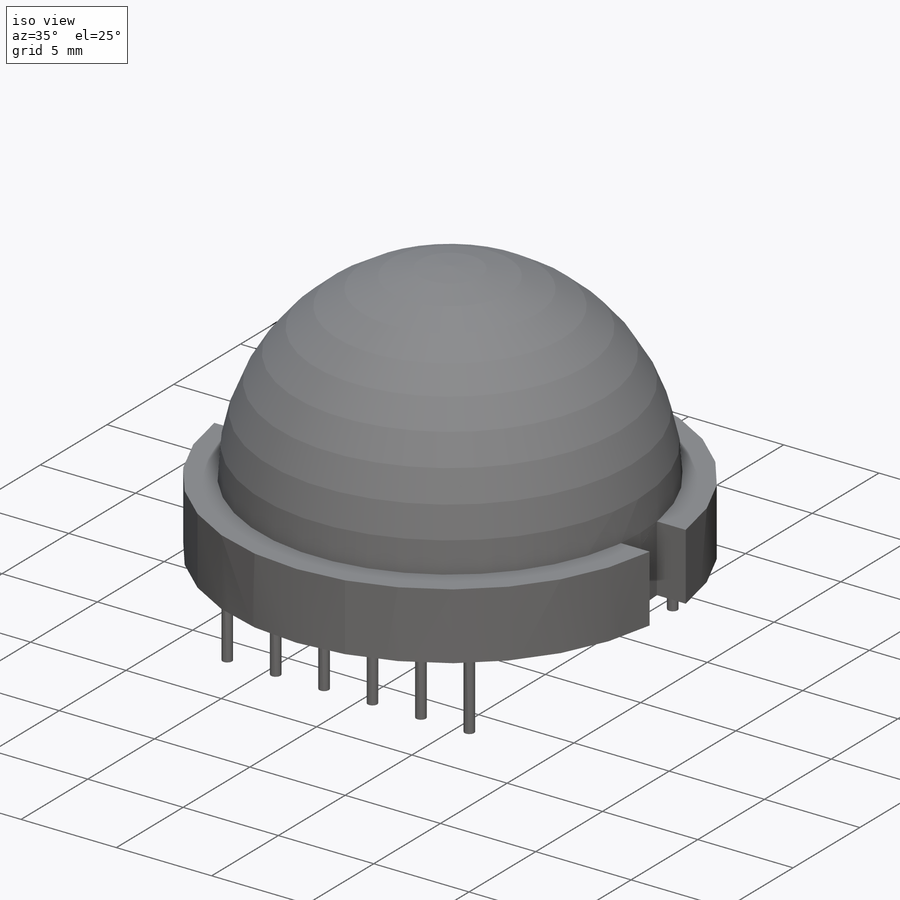
[diagram: iso view]
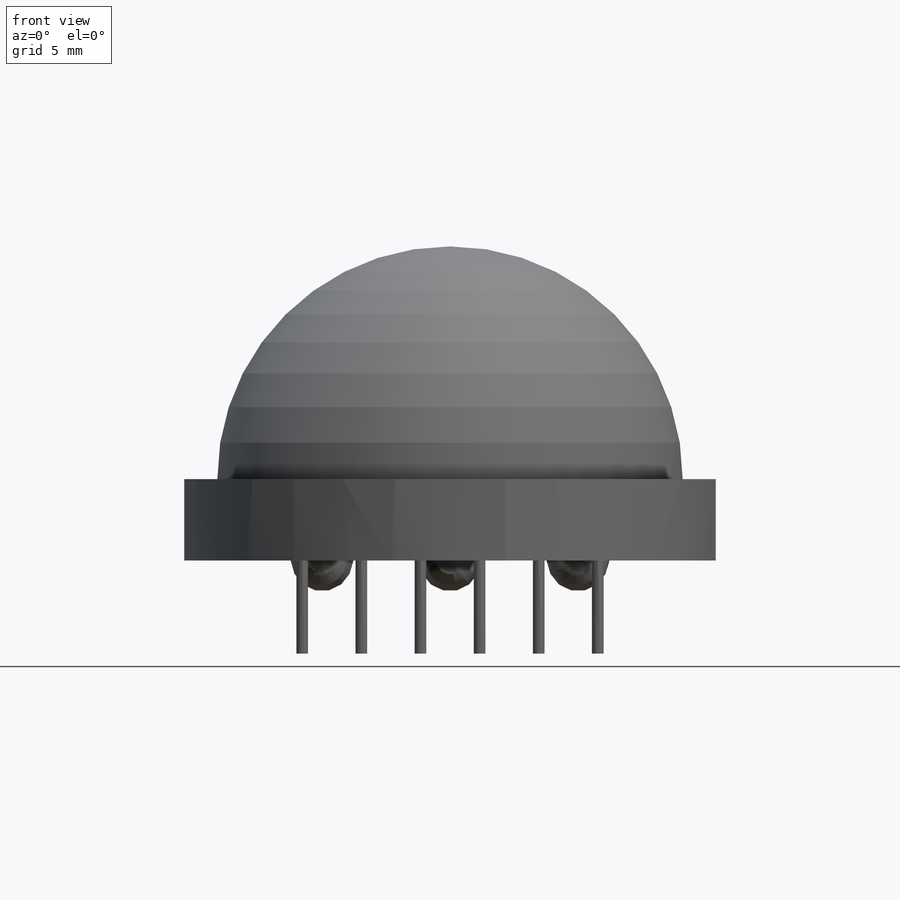
[diagram: front view]
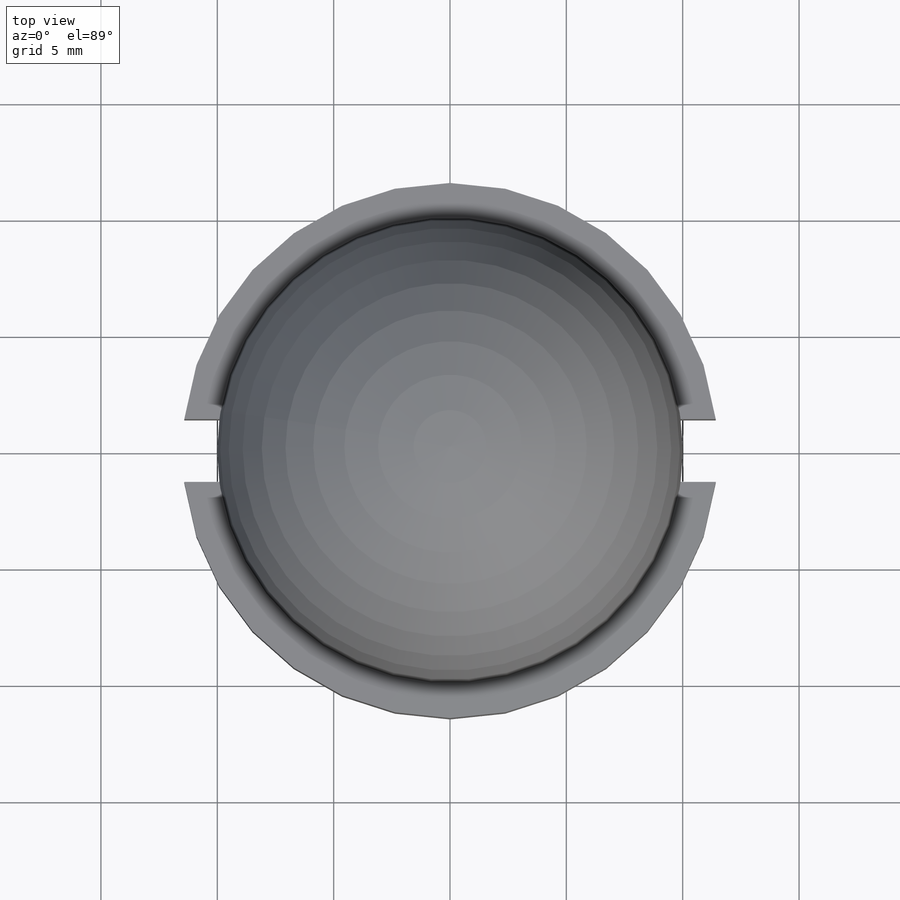
[diagram: top view]
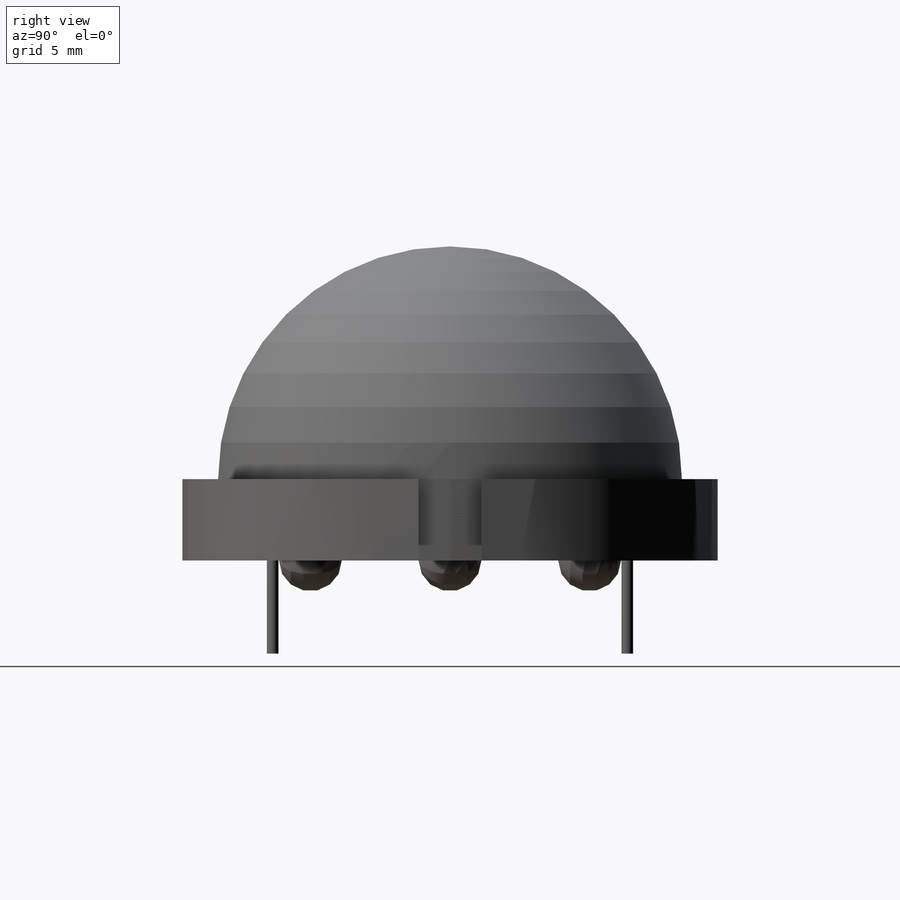
[diagram: right view]
SOLIDWORKS PART (.sldprt)
format: sldprt  version: not decoded by parser v0  size: 545,280 bytes
history: native  units: mm
features: sketch x13, revolve x10, material x1, extrude x1, cut_extrude x1, plane x1 (+11 scaffold rows collapsed)
feature tree (38):
  scaffold x11  (default folders/planes/origin — collapsed)
  material  "Material <not specified>"
  sketch  "Sketch1"  dims[D2=20.0mm D1=11.5mm D3=3.5mm D4=10.0mm]
  revolve  "Revolve1"  Angle=360deg
  sketch  "Sketch2"  dims[c1.D1=0.5mm c1.D5=2.7mm c1.D2=2.54mm c1.D3=2.54mm c1.D4=15.24mm c2.D5=2.7mm c2.D6=2.54mm c2.D7=6.0mm c3.D6=2.54mm c3.D8=5.5mm]
  extrude  "Extrude1"  Depth=4mm
  sketch  "Sketch3"  dims[D1=2.7mm]
  cut_extrude  "Cut-Extrude1"  Depth=4mm
  revolve  "Revolve2"  [1 undecoded]
  sketch  "Sketch2<4>"  dims[D1=180.0deg]
  revolve  "Revolve3"  [1 undecoded]
  sketch  "Sketch2<5>"  dims[D1=360.0deg]
  revolve  "Revolve4"  [1 undecoded]
  sketch  "Sketch2<6>"  dims[D1=360.0deg]
  revolve  "Revolve5"  [1 undecoded]
  sketch  "Sketch2<7>"  dims[D1=360.0deg]
  revolve  "Revolve6"  [1 undecoded]
  sketch  "Sketch2<8>"  dims[D1=360.0deg]
  revolve  "Revolve7"  [1 undecoded]
  sketch  "Sketch2<9>"  dims[D1=360.0deg]
  revolve  "Revolve8"  [1 undecoded]
  sketch  "Sketch2<10>"  dims[D1=360.0deg]
  revolve  "Revolve9"  [1 undecoded]
  sketch  "Sketch2<11>"  dims[D1=360.0deg]
  revolve  "Revolve10"  [1 undecoded]
  sketch  "Sketch2<12>"  dims[D1=360.0deg]
  plane  "Plane2"
  sketch  "Sketch5"  dims[D1=1.0mm D2=2.5mm]
decode coverage: 16 of 25 modeling features carry decoded parameters
note: 9 parameter values undecoded
summary: no parameter record found for 9 features
note: suppression state not decoded; provenance and decode notes live in map.json
